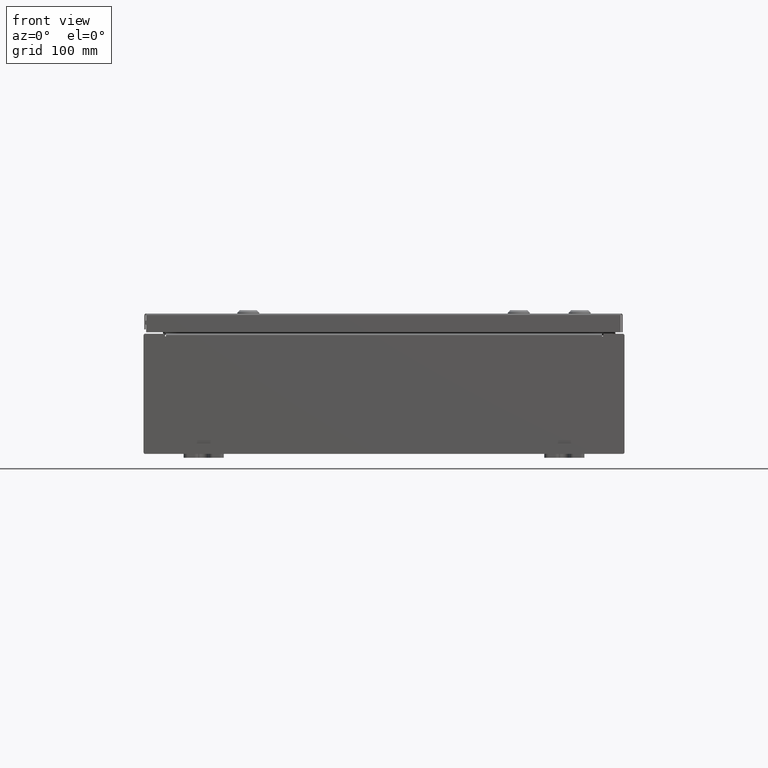
[diagram: clean part render]
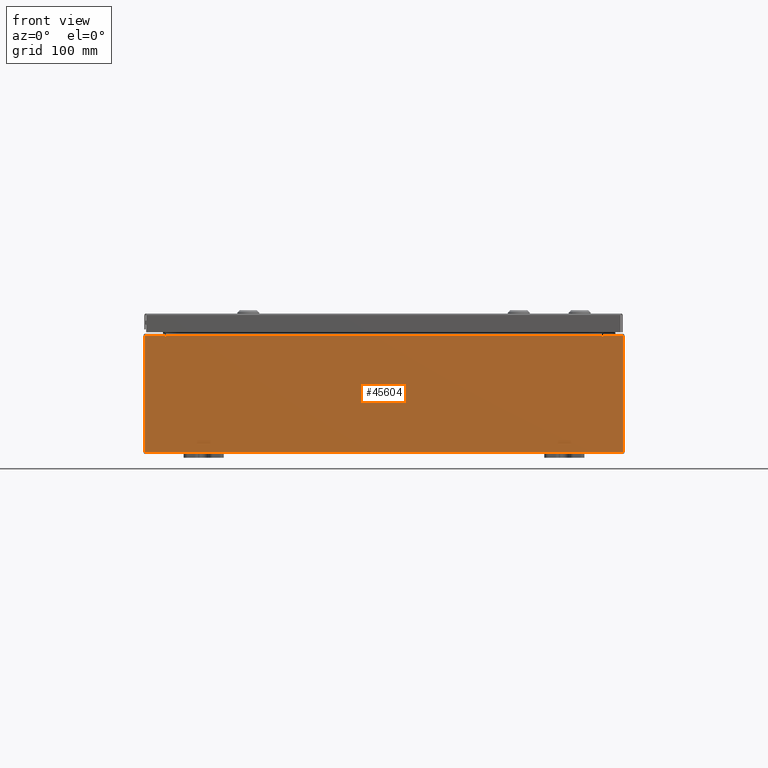
[diagram: same view with one face highlighted and labeled with its STEP entity id]
A machine part, front view. The second image highlights one B-rep face of the part: STEP entity #45604.
In plain terms, the highlighted planar face has unit normal (0, 1, -0).
Its self-contained STEP definition (entity closure, byte-faithful):
#283 = DIRECTION ( 'NONE',  ( 9.992007221626408900E-016, -2.013110121372521300E-016, 1.000000000000000000 ) ) ;
#1071 = CARTESIAN_POINT ( 'NONE',  ( -11.92530000000000000, 0.0000000000000000000, 2.925299999999988500 ) ) ;
#1323 = VERTEX_POINT ( 'NONE', #18312 ) ;
#2161 = CARTESIAN_POINT ( 'NONE',  ( -10.92454999999999800, 0.0000000000000000000, 2.925299999999987600 ) ) ;
#2679 = DIRECTION ( 'NONE',  ( -3.225867722578236700E-016, -1.000000000000000000, -2.013110121372518100E-016 ) ) ;
#2776 = EDGE_CURVE ( 'NONE', #55396, #27376, #19857, .T. ) ;
#3465 = FACE_OUTER_BOUND ( 'NONE', #33121, .T. ) ;
#3725 = LINE ( 'NONE', #56705, #53620 ) ;
#3840 = CARTESIAN_POINT ( 'NONE',  ( -10.92454999999999800, 0.0000000000000000000, -9.834652777191348400E-015 ) ) ;
#5168 = VERTEX_POINT ( 'NONE', #27075 ) ;
#5310 = CARTESIAN_POINT ( 'NONE',  ( 10.88720000000000200, 0.0000000000000000000, 2.874950000000012600 ) ) ;
#5401 = EDGE_CURVE ( 'NONE', #26199, #9008, #53346, .T. ) ;
#5775 = ORIENTED_EDGE ( 'NONE', *, *, #22413, .T. ) ;
#6797 = EDGE_CURVE ( 'NONE', #5168, #9638, #47073, .T. ) ;
#7729 = LINE ( 'NONE', #3840, #19178 ) ;
#9008 = VERTEX_POINT ( 'NONE', #56452 ) ;
#9456 = CIRCLE ( 'NONE', #47650, 0.01867499999999949400 ) ;
#9638 = VERTEX_POINT ( 'NONE', #39331 ) ;
#9684 = DIRECTION ( 'NONE',  ( 0.0000000000000000000, 2.013110121372521000E-016, -1.000000000000000000 ) ) ;
#9768 = DIRECTION ( 'NONE',  ( 3.225867722578232700E-016, 1.000000000000000000, -2.013110121372520500E-016 ) ) ;
#9827 = CARTESIAN_POINT ( 'NONE',  ( 10.90587500000000200, 0.0000000000000000000, 2.874950000000013400 ) ) ;
#10803 = DIRECTION ( 'NONE',  ( 0.0000000000000000000, 2.013110121372521000E-016, -1.000000000000000000 ) ) ;
#10822 = DIRECTION ( 'NONE',  ( 3.225867722578232700E-016, 1.000000000000000000, -2.013110121372520500E-016 ) ) ;
#11007 = CARTESIAN_POINT ( 'NONE',  ( -10.90587500000000000, 0.0000000000000000000, 2.874949999999988600 ) ) ;
#11134 = VECTOR ( 'NONE', #50698, 39.37007874015748100 ) ;
#12654 = ORIENTED_EDGE ( 'NONE', *, *, #17952, .T. ) ;
#13219 = CARTESIAN_POINT ( 'NONE',  ( -10.92454999999999800, 0.0000000000000000000, 2.874949999999988600 ) ) ;
#13681 = LINE ( 'NONE', #53494, #28152 ) ;
#13919 = LINE ( 'NONE', #59778, #11134 ) ;
#16009 = VERTEX_POINT ( 'NONE', #42405 ) ;
#17016 = PLANE ( 'NONE',  #35147 ) ;
#17032 = EDGE_CURVE ( 'NONE', #9638, #39696, #44237, .T. ) ;
#17277 = VECTOR ( 'NONE', #20727, 39.37007874015748100 ) ;
#17952 = EDGE_CURVE ( 'NONE', #16009, #47098, #13919, .T. ) ;
#18230 = EDGE_CURVE ( 'NONE', #16009, #1323, #21036, .T. ) ;
#18312 = CARTESIAN_POINT ( 'NONE',  ( -10.88720000000000000, 0.0000000000000000000, 2.874949999999988600 ) ) ;
#19178 = VECTOR ( 'NONE', #52035, 39.37007874015748100 ) ;
#19620 = ORIENTED_EDGE ( 'NONE', *, *, #26524, .F. ) ;
#19857 = LINE ( 'NONE', #45025, #19904 ) ;
#19904 = VECTOR ( 'NONE', #23177, 39.37007874015748100 ) ;
#20727 = DIRECTION ( 'NONE',  ( 1.000000000000000000, 3.225867722578232700E-016, 9.992007221626408900E-016 ) ) ;
#20741 = ORIENTED_EDGE ( 'NONE', *, *, #18230, .F. ) ;
#21036 = LINE ( 'NONE', #25873, #58409 ) ;
#21646 = ORIENTED_EDGE ( 'NONE', *, *, #17032, .T. ) ;
#21787 = ORIENTED_EDGE ( 'NONE', *, *, #50874, .F. ) ;
#22098 = CARTESIAN_POINT ( 'NONE',  ( 0.0000000000000000000, 0.0000000000000000000, 0.0000000000000000000 ) ) ;
#22413 = EDGE_CURVE ( 'NONE', #26199, #55396, #30184, .T. ) ;
#22633 = DIRECTION ( 'NONE',  ( -9.992007221626408900E-016, 2.013110121372521300E-016, -1.000000000000000000 ) ) ;
#23177 = DIRECTION ( 'NONE',  ( -9.992007221626408900E-016, 2.013110121372521300E-016, -1.000000000000000000 ) ) ;
#23957 = VECTOR ( 'NONE', #56968, 39.37007874015748100 ) ;
#25573 = ORIENTED_EDGE ( 'NONE', *, *, #26444, .F. ) ;
#25873 = CARTESIAN_POINT ( 'NONE',  ( -10.88720000000000000, 0.0000000000000000000, -9.834652777191348400E-015 ) ) ;
#26199 = VERTEX_POINT ( 'NONE', #30068 ) ;
#26444 = EDGE_CURVE ( 'NONE', #1323, #29988, #9456, .T. ) ;
#26524 = EDGE_CURVE ( 'NONE', #9008, #36179, #62399, .T. ) ;
#27075 = CARTESIAN_POINT ( 'NONE',  ( -11.92530000000001400, 0.0000000000000000000, -2.925300000000012400 ) ) ;
#27376 = VERTEX_POINT ( 'NONE', #49280 ) ;
#28152 = VECTOR ( 'NONE', #55389, 39.37007874015748100 ) ;
#29988 = VERTEX_POINT ( 'NONE', #13219 ) ;
#30068 = CARTESIAN_POINT ( 'NONE',  ( 10.92455000000000000, 0.0000000000000000000, 2.925300000000014700 ) ) ;
#30184 = LINE ( 'NONE', #36436, #17277 ) ;
#31095 = CARTESIAN_POINT ( 'NONE',  ( -11.92530000000000000, 0.0000000000000000000, 2.925299999999988500 ) ) ;
#33121 = EDGE_LOOP ( 'NONE', ( #21787, #25573, #20741, #12654, #61269, #19620, #61987, #5775, #57814, #59286, #47116, #21646 ) ) ;
#33495 = EDGE_CURVE ( 'NONE', #36179, #47098, #3725, .T. ) ;
#33593 = EDGE_CURVE ( 'NONE', #27376, #5168, #13681, .T. ) ;
#35147 = AXIS2_PLACEMENT_3D ( 'NONE', #22098, #2679, #36760 ) ;
#36179 = VERTEX_POINT ( 'NONE', #5310 ) ;
#36436 = CARTESIAN_POINT ( 'NONE',  ( -11.92530000000000000, 0.0000000000000000000, 2.925299999999988500 ) ) ;
#36760 = DIRECTION ( 'NONE',  ( -9.992007221626408900E-016, 2.013110121372521300E-016, -1.000000000000000000 ) ) ;
#39331 = CARTESIAN_POINT ( 'NONE',  ( -11.92530000000000000, 0.0000000000000000000, 2.925299999999988500 ) ) ;
#39696 = VERTEX_POINT ( 'NONE', #2161 ) ;
#42405 = CARTESIAN_POINT ( 'NONE',  ( -10.88720000000000000, 0.0000000000000000000, 2.912299999999987200 ) ) ;
#44237 = LINE ( 'NONE', #31095, #23957 ) ;
#45025 = CARTESIAN_POINT ( 'NONE',  ( 11.92530000000000000, 0.0000000000000000000, 2.925300000000013800 ) ) ;
#45604 = ADVANCED_FACE ( 'NONE', ( #3465 ), #17016, .F. ) ;
#46752 = AXIS2_PLACEMENT_3D ( 'NONE', #9827, #9768, #9684 ) ;
#46901 = VECTOR ( 'NONE', #283, 39.37007874015748100 ) ;
#47073 = LINE ( 'NONE', #1071, #46901 ) ;
#47098 = VERTEX_POINT ( 'NONE', #60709 ) ;
#47116 = ORIENTED_EDGE ( 'NONE', *, *, #6797, .T. ) ;
#47650 = AXIS2_PLACEMENT_3D ( 'NONE', #11007, #10822, #10803 ) ;
#49280 = CARTESIAN_POINT ( 'NONE',  ( 11.92529999999998800, 0.0000000000000000000, -2.925299999999986200 ) ) ;
#50698 = DIRECTION ( 'NONE',  ( 1.000000000000000000, 3.225867722578232700E-016, 9.992007221626408900E-016 ) ) ;
#50874 = EDGE_CURVE ( 'NONE', #29988, #39696, #7729, .T. ) ;
#52035 = DIRECTION ( 'NONE',  ( 9.992007221626408900E-016, -2.013110121372521300E-016, 1.000000000000000000 ) ) ;
#52833 = CARTESIAN_POINT ( 'NONE',  ( 11.92530000000000000, 0.0000000000000000000, 2.925300000000013800 ) ) ;
#53346 = LINE ( 'NONE', #56313, #53704 ) ;
#53494 = CARTESIAN_POINT ( 'NONE',  ( -11.92530000000001400, 0.0000000000000000000, -2.925300000000012400 ) ) ;
#53620 = VECTOR ( 'NONE', #56072, 39.37007874015748100 ) ;
#53704 = VECTOR ( 'NONE', #56509, 39.37007874015748100 ) ;
#55389 = DIRECTION ( 'NONE',  ( -1.000000000000000000, -3.225867722578232700E-016, -9.992007221626408900E-016 ) ) ;
#55396 = VERTEX_POINT ( 'NONE', #52833 ) ;
#56072 = DIRECTION ( 'NONE',  ( 9.992007221626408900E-016, -2.013110121372521300E-016, 1.000000000000000000 ) ) ;
#56313 = CARTESIAN_POINT ( 'NONE',  ( 10.92454999999987600, 0.0000000000000000000, -4.611359413305276800E-013 ) ) ;
#56452 = CARTESIAN_POINT ( 'NONE',  ( 10.92455000000000000, 0.0000000000000000000, 2.874950000000013400 ) ) ;
#56509 = DIRECTION ( 'NONE',  ( -4.440492852616269000E-014, 2.013110121372381000E-016, -1.000000000000000000 ) ) ;
#56705 = CARTESIAN_POINT ( 'NONE',  ( 10.88720000000000200, 0.0000000000000000000, 1.311287036958846300E-014 ) ) ;
#56968 = DIRECTION ( 'NONE',  ( 1.000000000000000000, 3.225867722578232700E-016, 9.992007221626408900E-016 ) ) ;
#57814 = ORIENTED_EDGE ( 'NONE', *, *, #2776, .T. ) ;
#58409 = VECTOR ( 'NONE', #22633, 39.37007874015748100 ) ;
#59286 = ORIENTED_EDGE ( 'NONE', *, *, #33593, .T. ) ;
#59778 = CARTESIAN_POINT ( 'NONE',  ( -10.88720000000000200, 0.0000000000000000000, 2.912299999999987200 ) ) ;
#60709 = CARTESIAN_POINT ( 'NONE',  ( 10.88720000000000200, 0.0000000000000000000, 2.912300000000013400 ) ) ;
#61269 = ORIENTED_EDGE ( 'NONE', *, *, #33495, .F. ) ;
#61987 = ORIENTED_EDGE ( 'NONE', *, *, #5401, .F. ) ;
#62399 = CIRCLE ( 'NONE', #46752, 0.01867499999999949400 ) ;